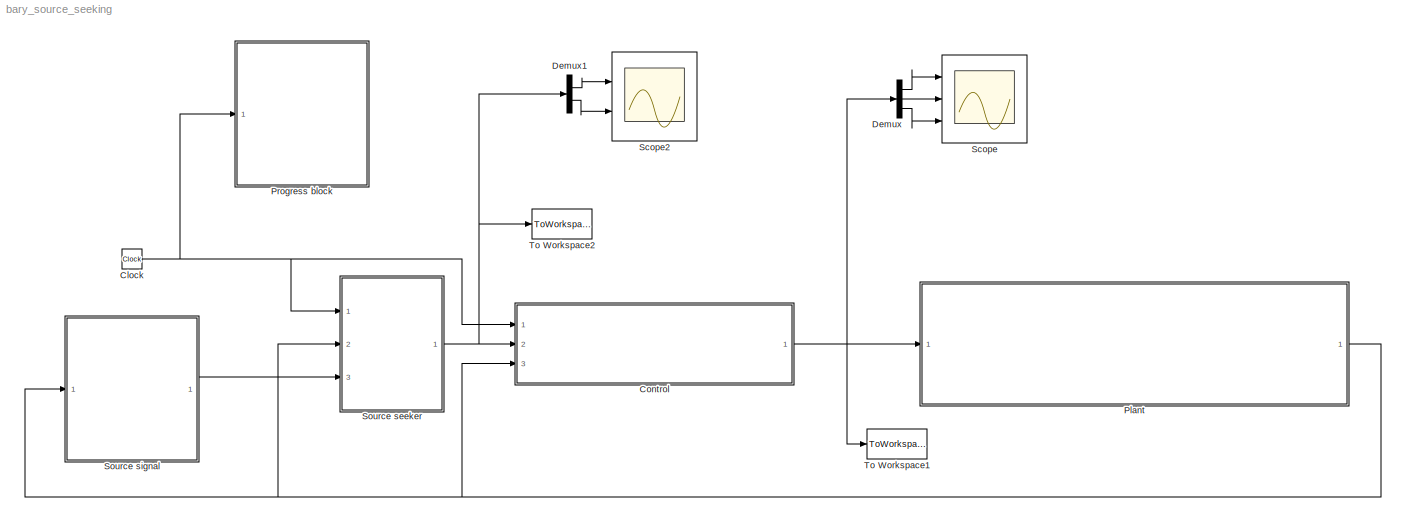
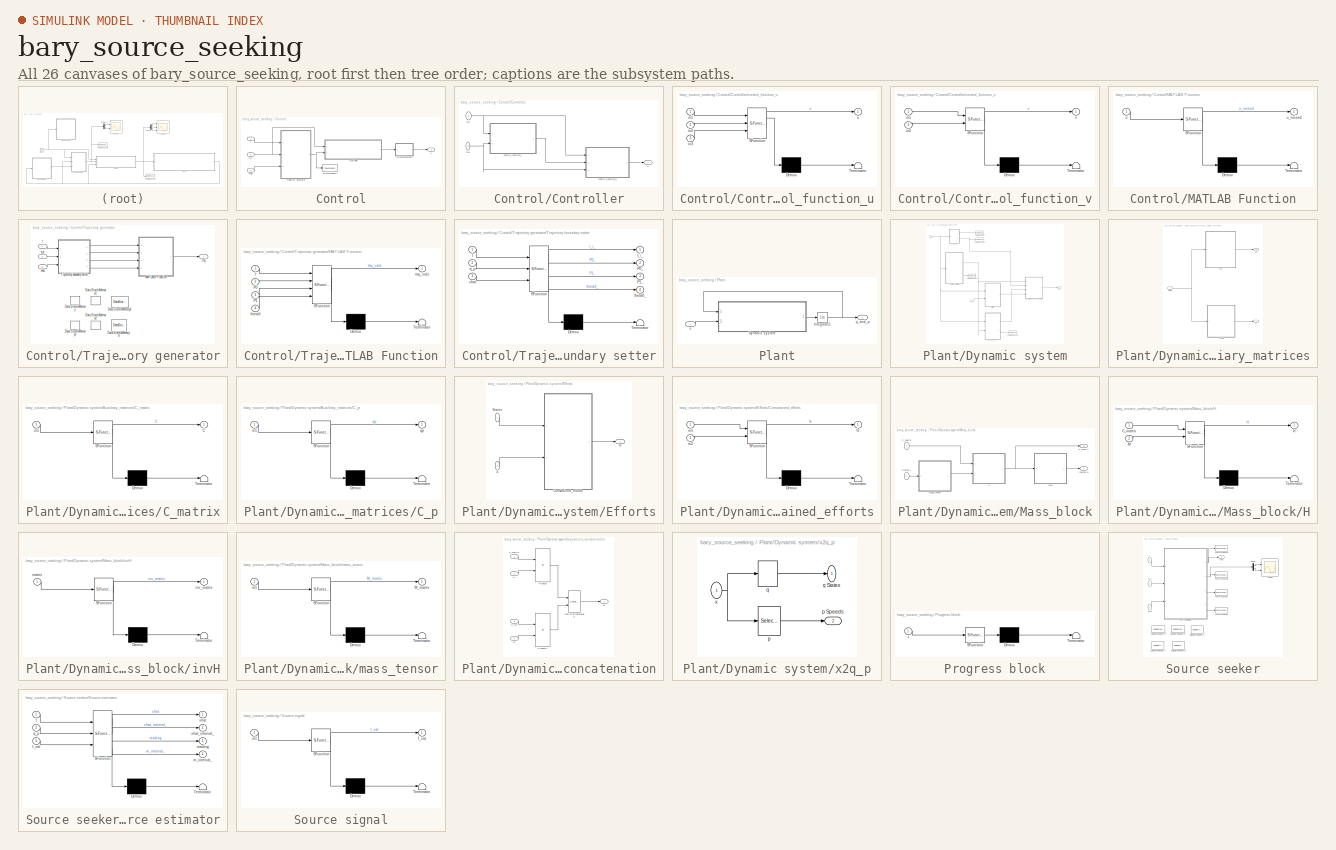
[diagram: thumbnail index - all 26 canvases of the model, root first then tree order]
MODEL bary_source_seeking
KIND model
BLOCK [Clock] Clock
  SID = 6
BLOCK [SubSystem] Control
  Ports = [3, 1]
  RequestExecContextInheritance = off
  SID = 310
  Variant = off
BLOCK [SubSystem] Control/Controller
  Ports = [2, 1]
  RequestExecContextInheritance = off
  SID = 345
  Variant = off
BLOCK [SubSystem] Control/Controller/control_function_u
  ErrorFcn = Stateflow.Translate.translate
  PermitHierarchicalResolution = ExplicitOnly
  Ports = [3, 1]
  RequestExecContextInheritance = off
  SFBlockType = MATLAB Function
  SID = 348
  TreatAsAtomicUnit = on
  Variant = off
BLOCK [Demux] Control/Controller/control_function_u/ Demux 
  Outputs = 1
  Ports = [1, 1]
  SID = 348::109
BLOCK [S-Function] Control/Controller/control_function_u/ SFunction 
  EnableBusSupport = off
  FunctionName = sf_sfun
  PortCounts = [3 2]
  Ports = [3, 2]
  SFcnIsStateOwnerBlock = off
  SFunctionDeploymentMode = off
  SID = 348::108
  Tag = Stateflow S-Function bary_source_seeking 1
BLOCK [Terminator] Control/Controller/control_function_u/ Terminator 
  SID = 348::110
BLOCK [Inport] Control/Controller/control_function_u/in1
  IconDisplay = Port number
  SID = 348::95
BLOCK [Inport] Control/Controller/control_function_u/in2
  IconDisplay = Port number
  Port = 2
  SID = 348::103
BLOCK [Inport] Control/Controller/control_function_u/in3
  IconDisplay = Port number
  Port = 3
  SID = 348::104
BLOCK [Outport] Control/Controller/control_function_u/u
  IconDisplay = Port number
  SID = 348::94
BLOCK [SubSystem] Control/Controller/control_function_v
  ErrorFcn = Stateflow.Translate.translate
  PermitHierarchicalResolution = ExplicitOnly
  Ports = [2, 1]
  RequestExecContextInheritance = off
  SFBlockType = MATLAB Function
  SID = 349
  TreatAsAtomicUnit = on
  Variant = off
BLOCK [Demux] Control/Controller/control_function_v/ Demux 
  Outputs = 1
  Ports = [1, 1]
  SID = 349::108
BLOCK [S-Function] Control/Controller/control_function_v/ SFunction 
  EnableBusSupport = off
  FunctionName = sf_sfun
  PortCounts = [2 2]
  Ports = [2, 2]
  SFcnIsStateOwnerBlock = off
  SFunctionDeploymentMode = off
  SID = 349::107
  Tag = Stateflow S-Function bary_source_seeking 5
BLOCK [Terminator] Control/Controller/control_function_v/ Terminator 
  SID = 349::109
BLOCK [Inport] Control/Controller/control_function_v/in1
  IconDisplay = Port number
  SID = 349::95
BLOCK [Inport] Control/Controller/control_function_v/in2
  IconDisplay = Port number
  Port = 2
  SID = 349::103
BLOCK [Outport] Control/Controller/control_function_v/v
  IconDisplay = Port number
  SID = 349::94
BLOCK [Inport] Control/Controller/q_p
  IconDisplay = Port number
  SID = 346
BLOCK [Inport] Control/Controller/traj
  IconDisplay = Port number
  Port = 2
  SID = 347
BLOCK [Outport] Control/Controller/u
  IconDisplay = Port number
  SID = 350
BLOCK [SubSystem] Control/MATLAB Function
  ErrorFcn = Stateflow.Translate.translate
  PermitHierarchicalResolution = ExplicitOnly
  Ports = [1, 1]
  RequestExecContextInheritance = off
  SFBlockType = MATLAB Function
  SID = 431
  TreatAsAtomicUnit = on
  Variant = off
BLOCK [Demux] Control/MATLAB Function/ Demux 
  Outputs = 1
  Ports = [1, 1]
  SID = 431::27
BLOCK [S-Function] Control/MATLAB Function/ SFunction 
  EnableBusSupport = off
  FunctionName = sf_sfun
  Parameters = control_info
  PortCounts = [1 2]
  Ports = [1, 2]
  SFcnIsStateOwnerBlock = off
  SFunctionDeploymentMode = off
  SID = 431::26
  Tag = Stateflow S-Function bary_source_seeking 6
BLOCK [Terminator] Control/MATLAB Function/ Terminator 
  SID = 431::28
BLOCK [Inport] Control/MATLAB Function/u
  IconDisplay = Port number
  SID = 431::1
BLOCK [Outport] Control/MATLAB Function/u_noised
  IconDisplay = Port number
  SID = 431::5
BLOCK [ToWorkspace] Control/To Workspace1
  FixptAsFi = on
  MaxDataPoints = inf
  Ports = [1]
  SID = 351
  SampleTime = -1
  Save2DSignal = 3-D array (concatenate along third dimension)
  SaveFormat = Structure With Time
  VariableName = trajs
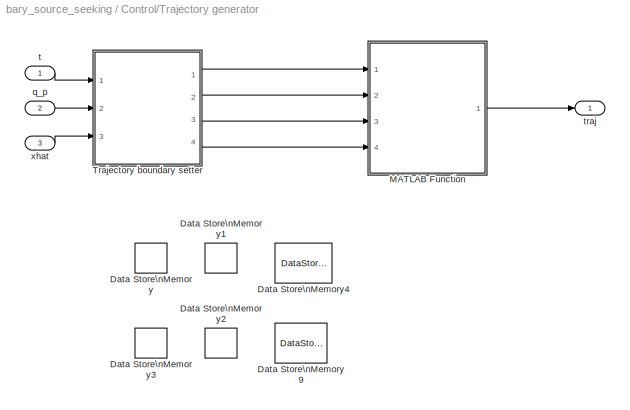
BLOCK [SubSystem] Control/Trajectory generator
  Ports = [3, 1]
  RequestExecContextInheritance = off
  SID = 330
  Variant = off
BLOCK [DataStoreMemory] Control/Trajectory generator/Data Store\nMemory
  DataStoreName = P0
  Dimensions = [2, 1]
  InitialValue = x0(1:2)
  OutDataTypeStr = double
  SID = 335
  ShowAdditionalParam = off
  SignalType = real
  WriteAfterReadMsg = warning
  WriteAfterWriteMsg = warning
BLOCK [DataStoreMemory] Control/Trajectory generator/Data Store\nMemory1
  DataStoreName = P1
  InitialValue = xhat0
  OutDataTypeStr = double
  SID = 336
  ShowAdditionalParam = off
  SignalType = real
BLOCK [DataStoreMemory] Control/Trajectory generator/Data Store\nMemory2
  DataStoreName = theta0
  InitialValue = x0(3)
  OutDataTypeStr = double
  SID = 337
  ShowAdditionalParam = off
  SignalType = real
BLOCK [DataStoreMemory] Control/Trajectory generator/Data Store\nMemory3
  DataStoreName = t_i
  OutDataTypeStr = double
  SID = 338
  ShowAdditionalParam = off
  SignalType = real
BLOCK [DataStoreMemory] Control/Trajectory generator/Data Store\nMemory4
  DataStoreName = traj_params
  OutDataTypeStr = double
  SID = 339
  ShowAdditionalParam = off
  SignalType = real
BLOCK [DataStoreMemory] Control/Trajectory generator/Data Store\nMemory9
  DataStoreName = t_0
  OutDataTypeStr = double
  SID = 340
  ShowAdditionalParam = off
  SignalType = real
BLOCK [SubSystem] Control/Trajectory generator/MATLAB Function
  ErrorFcn = Stateflow.Translate.translate
  PermitHierarchicalResolution = ExplicitOnly
  Ports = [4, 1]
  RequestExecContextInheritance = off
  SFBlockType = MATLAB Function
  SID = 341
  TreatAsAtomicUnit = on
  Variant = off
BLOCK [Demux] Control/Trajectory generator/MATLAB Function/ Demux 
  Outputs = 1
  Ports = [1, 1]
  SID = 341::35
BLOCK [S-Function] Control/Trajectory generator/MATLAB Function/ SFunction 
  EnableBusSupport = off
  FunctionName = sf_sfun
  Parameters = trajectory_info
  PortCounts = [4 2]
  Ports = [4, 2]
  SFcnIsStateOwnerBlock = off
  SFunctionDeploymentMode = off
  SID = 341::34
  Tag = Stateflow S-Function bary_source_seeking 2
BLOCK [Terminator] Control/Trajectory generator/MATLAB Function/ Terminator 
  SID = 341::36
BLOCK [Inport] Control/Trajectory generator/MATLAB Function/P0
  IconDisplay = Port number
  Port = 2
  SID = 341::22
BLOCK [Inport] Control/Trajectory generator/MATLAB Function/P1
  IconDisplay = Port number
  Port = 3
  SID = 341::23
BLOCK [Inport] Control/Trajectory generator/MATLAB Function/t
  IconDisplay = Port number
  SID = 341::1
BLOCK [Inport] Control/Trajectory generator/MATLAB Function/theta0
  IconDisplay = Port number
  Port = 4
  SID = 341::30
BLOCK [Outport] Control/Trajectory generator/MATLAB Function/traj_vals
  IconDisplay = Port number
  SID = 341::5
BLOCK [SubSystem] Control/Trajectory generator/Trajectory boundary setter
  ErrorFcn = Stateflow.Translate.translate
  PermitHierarchicalResolution = ExplicitOnly
  Ports = [3, 4]
  RequestExecContextInheritance = off
  SFBlockType = MATLAB Function
  SID = 342
  TreatAsAtomicUnit = on
  Variant = off
BLOCK [Demux] Control/Trajectory generator/Trajectory boundary setter/ Demux 
  Outputs = 1
  Ports = [1, 1]
  SID = 342::50
BLOCK [S-Function] Control/Trajectory generator/Trajectory boundary setter/ SFunction 
  EnableBusSupport = off
  FunctionName = sf_sfun
  Parameters = source_params
  PortCounts = [3 5]
  Ports = [3, 5]
  SFcnIsStateOwnerBlock = off
  SFunctionDeploymentMode = off
  SID = 342::49
  Tag = Stateflow S-Function bary_source_seeking 4
BLOCK [Terminator] Control/Trajectory generator/Trajectory boundary setter/ Terminator 
  SID = 342::51
BLOCK [Outport] Control/Trajectory generator/Trajectory boundary setter/P0_
  IconDisplay = Port number
  Port = 2
  SID = 342::31
BLOCK [Outport] Control/Trajectory generator/Trajectory boundary setter/P1_
  IconDisplay = Port number
  Port = 3
  SID = 342::32
BLOCK [Inport] Control/Trajectory generator/Trajectory boundary setter/q_p
  IconDisplay = Port number
  Port = 2
  SID = 342::26
BLOCK [Inport] Control/Trajectory generator/Trajectory boundary setter/t
  IconDisplay = Port number
  SID = 342::1
BLOCK [Outport] Control/Trajectory generator/Trajectory boundary setter/t_i_
  IconDisplay = Port number
  SID = 342::5
BLOCK [Outport] Control/Trajectory generator/Trajectory boundary setter/theta0_
  IconDisplay = Port number
  Port = 4
  SID = 342::33
BLOCK [Inport] Control/Trajectory generator/Trajectory boundary setter/xhat
  IconDisplay = Port number
  Port = 3
  SID = 342::22
BLOCK [Inport] Control/Trajectory generator/q_p
  IconDisplay = Port number
  Port = 2
  SID = 332
BLOCK [Inport] Control/Trajectory generator/t
  IconDisplay = Port number
  SID = 331
BLOCK [Outport] Control/Trajectory generator/traj
  IconDisplay = Port number
  SID = 343
BLOCK [Inport] Control/Trajectory generator/xhat
  IconDisplay = Port number
  Port = 3
  SID = 334
BLOCK [Inport] Control/q_p
  IconDisplay = Port number
  Port = 3
  SID = 314
BLOCK [Inport] Control/t
  IconDisplay = Port number
  SID = 311
BLOCK [Outport] Control/u
  IconDisplay = Port number
  SID = 329
BLOCK [Inport] Control/xhat
  IconDisplay = Port number
  Port = 2
  SID = 313
BLOCK [Demux] Demux
  DisplayOption = bar
  Outputs = 3
  Ports = [1, 3]
  SID = 409
BLOCK [Demux] Demux1
  DisplayOption = bar
  Outputs = 2
  Ports = [1, 2]
  SID = 414
BLOCK [SubSystem] Plant
  Ports = [1, 1]
  RequestExecContextInheritance = off
  SID = 82
  Variant = off
BLOCK [SubSystem] Plant/Dynamic system
  Ports = [2, 1]
  RequestExecContextInheritance = off
  SID = 266
  Variant = off
BLOCK [SubSystem] Plant/Dynamic system/Auxiliary_matrices
  Ports = [1, 2]
  RequestExecContextInheritance = off
  SID = 269
  Variant = off
BLOCK [Outport] Plant/Dynamic system/Auxiliary_matrices/C
  IconDisplay = Port number
  SID = 273
BLOCK [SubSystem] Plant/Dynamic system/Auxiliary_matrices/C_matrix
  ErrorFcn = Stateflow.Translate.translate
  PermitHierarchicalResolution = ExplicitOnly
  Ports = [1, 1]
  RequestExecContextInheritance = off
  SFBlockType = MATLAB Function
  SID = 271
  TreatAsAtomicUnit = on
  Variant = off
BLOCK [Demux] Plant/Dynamic system/Auxiliary_matrices/C_matrix/ Demux 
  Outputs = 1
  Ports = [1, 1]
  SID = 271::71
BLOCK [S-Function] Plant/Dynamic system/Auxiliary_matrices/C_matrix/ SFunction 
  EnableBusSupport = off
  FunctionName = sf_sfun
  PortCounts = [1 2]
  Ports = [1, 2]
  SFcnIsStateOwnerBlock = off
  SFunctionDeploymentMode = off
  SID = 271::70
  Tag = Stateflow S-Function bary_source_seeking 8
BLOCK [Terminator] Plant/Dynamic system/Auxiliary_matrices/C_matrix/ Terminator 
  SID = 271::72
BLOCK [Outport] Plant/Dynamic system/Auxiliary_matrices/C_matrix/C
  IconDisplay = Port number
  SID = 271::5
BLOCK [Inport] Plant/Dynamic system/Auxiliary_matrices/C_matrix/in1
  IconDisplay = Port number
  SID = 271::1
BLOCK [SubSystem] Plant/Dynamic system/Auxiliary_matrices/C_p
  ErrorFcn = Stateflow.Translate.translate
  PermitHierarchicalResolution = ExplicitOnly
  Ports = [1, 1]
  RequestExecContextInheritance = off
  SFBlockType = MATLAB Function
  SID = 272
  TreatAsAtomicUnit = on
  Variant = off
BLOCK [Demux] Plant/Dynamic system/Auxiliary_matrices/C_p/ Demux 
  Outputs = 1
  Ports = [1, 1]
  SID = 272::106
BLOCK [S-Function] Plant/Dynamic system/Auxiliary_matrices/C_p/ SFunction 
  EnableBusSupport = off
  FunctionName = sf_sfun
  PortCounts = [1 2]
  Ports = [1, 2]
  SFcnIsStateOwnerBlock = off
  SFunctionDeploymentMode = off
  SID = 272::105
  Tag = Stateflow S-Function bary_source_seeking 16
BLOCK [Terminator] Plant/Dynamic system/Auxiliary_matrices/C_p/ Terminator 
  SID = 272::107
BLOCK [Inport] Plant/Dynamic system/Auxiliary_matrices/C_p/in1
  IconDisplay = Port number
  SID = 272::95
BLOCK [Outport] Plant/Dynamic system/Auxiliary_matrices/C_p/qp
  IconDisplay = Port number
  SID = 272::94
BLOCK [Inport] Plant/Dynamic system/Auxiliary_matrices/States
  IconDisplay = Port number
  SID = 270
BLOCK [Outport] Plant/Dynamic system/Auxiliary_matrices/qp
  IconDisplay = Port number
  Port = 2
  SID = 274
BLOCK [SubSystem] Plant/Dynamic system/Efforts
  Ports = [2, 1]
  RequestExecContextInheritance = off
  SID = 275
  Variant = off
BLOCK [SubSystem] Plant/Dynamic system/Efforts/Constrained_efforts
  ErrorFcn = Stateflow.Translate.translate
  PermitHierarchicalResolution = ExplicitOnly
  Ports = [2, 1]
  RequestExecContextInheritance = off
  SFBlockType = MATLAB Function
  SID = 278
  TreatAsAtomicUnit = on
  Variant = off
BLOCK [Demux] Plant/Dynamic system/Efforts/Constrained_efforts/ Demux 
  Outputs = 1
  Ports = [1, 1]
  SID = 278::143
BLOCK [S-Function] Plant/Dynamic system/Efforts/Constrained_efforts/ SFunction 
  EnableBusSupport = off
  FunctionName = sf_sfun
  PortCounts = [2 2]
  Ports = [2, 2]
  SFcnIsStateOwnerBlock = off
  SFunctionDeploymentMode = off
  SID = 278::142
  Tag = Stateflow S-Function bary_source_seeking 9
BLOCK [Terminator] Plant/Dynamic system/Efforts/Constrained_efforts/ Terminator 
  SID = 278::144
BLOCK [Outport] Plant/Dynamic system/Efforts/Constrained_efforts/fs
  IconDisplay = Port number
  SID = 278::94
BLOCK [Inport] Plant/Dynamic system/Efforts/Constrained_efforts/in1
  IconDisplay = Port number
  SID = 278::95
BLOCK [Inport] Plant/Dynamic system/Efforts/Constrained_efforts/in2
  IconDisplay = Port number
  Port = 2
  SID = 278::138
BLOCK [Inport] Plant/Dynamic system/Efforts/States
  IconDisplay = Port number
  SID = 276
BLOCK [Outport] Plant/Dynamic system/Efforts/fs
  IconDisplay = Port number
  SID = 279
BLOCK [Inport] Plant/Dynamic system/Efforts/u
  IconDisplay = Port number
  Port = 2
  SID = 277
BLOCK [SubSystem] Plant/Dynamic system/Mass_block
  Ports = [2, 2]
  RequestExecContextInheritance = off
  SID = 280
  Variant = off
BLOCK [Inport] Plant/Dynamic system/Mass_block/C_1delta  
  IconDisplay = Port number
  Port = 2
  SID = 282
BLOCK [SubSystem] Plant/Dynamic system/Mass_block/H
  ErrorFcn = Stateflow.Translate.translate
  PermitHierarchicalResolution = ExplicitOnly
  Ports = [2, 1]
  RequestExecContextInheritance = off
  SFBlockType = MATLAB Function
  SID = 283
  TreatAsAtomicUnit = on
  Variant = off
BLOCK [Demux] Plant/Dynamic system/Mass_block/H/ Demux 
  Outputs = 1
  Ports = [1, 1]
  SID = 283::66
BLOCK [S-Function] Plant/Dynamic system/Mass_block/H/ SFunction 
  EnableBusSupport = off
  FunctionName = sf_sfun
  PortCounts = [2 2]
  Ports = [2, 2]
  SFcnIsStateOwnerBlock = off
  SFunctionDeploymentMode = off
  SID = 283::65
  Tag = Stateflow S-Function bary_source_seeking 10
BLOCK [Terminator] Plant/Dynamic system/Mass_block/H/ Terminator 
  SID = 283::67
BLOCK [Inport] Plant/Dynamic system/Mass_block/H/C_matrix
  IconDisplay = Port number
  SID = 283::1
BLOCK [Outport] Plant/Dynamic system/Mass_block/H/H
  IconDisplay = Port number
  SID = 283::5
BLOCK [Inport] Plant/Dynamic system/Mass_block/H/M
  IconDisplay = Port number
  Port = 2
  SID = 283::61
BLOCK [Outport] Plant/Dynamic system/Mass_block/H_matrix
  IconDisplay = Port number
  Port = 2
  SID = 287
BLOCK [Inport] Plant/Dynamic system/Mass_block/States x
  IconDisplay = Port number
  SID = 281
BLOCK [SubSystem] Plant/Dynamic system/Mass_block/invH
  ErrorFcn = Stateflow.Translate.translate
  PermitHierarchicalResolution = ExplicitOnly
  Ports = [1, 1]
  RequestExecContextInheritance = off
  SFBlockType = MATLAB Function
  SID = 284
  TreatAsAtomicUnit = on
  Variant = off
BLOCK [Demux] Plant/Dynamic system/Mass_block/invH/ Demux 
  Outputs = 1
  Ports = [1, 1]
  SID = 284::65
BLOCK [S-Function] Plant/Dynamic system/Mass_block/invH/ SFunction 
  EnableBusSupport = off
  FunctionName = sf_sfun
  PortCounts = [1 2]
  Ports = [1, 2]
  SFcnIsStateOwnerBlock = off
  SFunctionDeploymentMode = off
  SID = 284::64
  Tag = Stateflow S-Function bary_source_seeking 12
BLOCK [Terminator] Plant/Dynamic system/Mass_block/invH/ Terminator 
  SID = 284::66
BLOCK [Outport] Plant/Dynamic system/Mass_block/invH/inv_matrix
  IconDisplay = Port number
  SID = 284::5
BLOCK [Inport] Plant/Dynamic system/Mass_block/invH/matrix
  IconDisplay = Port number
  SID = 284::1
BLOCK [Outport] Plant/Dynamic system/Mass_block/inverse H
  IconDisplay = Port number
  SID = 286
BLOCK [SubSystem] Plant/Dynamic system/Mass_block/mass_tensor
  ErrorFcn = Stateflow.Translate.translate
  PermitHierarchicalResolution = ExplicitOnly
  Ports = [1, 1]
  RequestExecContextInheritance = off
  SFBlockType = MATLAB Function
  SID = 285
  TreatAsAtomicUnit = on
  Variant = off
BLOCK [Demux] Plant/Dynamic system/Mass_block/mass_tensor/ Demux 
  Outputs = 1
  Ports = [1, 1]
  SID = 285::65
BLOCK [S-Function] Plant/Dynamic system/Mass_block/mass_tensor/ SFunction 
  EnableBusSupport = off
  FunctionName = sf_sfun
  PortCounts = [1 2]
  Ports = [1, 2]
  SFcnIsStateOwnerBlock = off
  SFunctionDeploymentMode = off
  SID = 285::64
  Tag = Stateflow S-Function bary_source_seeking 11
BLOCK [Terminator] Plant/Dynamic system/Mass_block/mass_tensor/ Terminator 
  SID = 285::66
BLOCK [Outport] Plant/Dynamic system/Mass_block/mass_tensor/M_matrix
  IconDisplay = Port number
  SID = 285::5
BLOCK [Inport] Plant/Dynamic system/Mass_block/mass_tensor/in1
  IconDisplay = Port number
  SID = 285::1
BLOCK [ToWorkspace] Plant/Dynamic system/To Workspace
  FixptAsFi = on
  MaxDataPoints = inf
  Ports = [1]
  SID = 288
  SampleTime = -1
  Save2DSignal = 3-D array (concatenate along third dimension)
  SaveFormat = Structure With Time
  VariableName = coordinates
BLOCK [ToWorkspace] Plant/Dynamic system/To Workspace1
  FixptAsFi = on
  MaxDataPoints = inf
  Ports = [1]
  SID = 289
  SampleTime = -1
  Save2DSignal = 3-D array (concatenate along third dimension)
  SaveFormat = Structure With Time
  VariableName = p_speeds
BLOCK [ToWorkspace] Plant/Dynamic system/To Workspace2
  FixptAsFi = on
  MaxDataPoints = inf
  Ports = [1]
  SID = 290
  SampleTime = -1
  Save2DSignal = 3-D array (concatenate along third dimension)
  SaveFormat = Structure With Time
  VariableName = H
BLOCK [ToWorkspace] Plant/Dynamic system/To Workspace3
  FixptAsFi = on
  MaxDataPoints = inf
  Ports = [1]
  SID = 291
  SampleTime = -1
  Save2DSignal = 3-D array (concatenate along third dimension)
  SaveFormat = Structure With Time
  VariableName = q_speeds
BLOCK [Outport] Plant/Dynamic system/dx
  IconDisplay = Port number
  SID = 307
BLOCK [SubSystem] Plant/Dynamic system/equations_concatenation
  Ports = [4, 1]
  RequestExecContextInheritance = off
  SID = 292
  Variant = off
BLOCK [Inport] Plant/Dynamic system/equations_concatenation/C_matrix
  IconDisplay = Port number
  SID = 293
BLOCK [Inport] Plant/Dynamic system/equations_concatenation/H_inv
  IconDisplay = Port number
  Port = 3
  SID = 295
BLOCK [Concatenate] Plant/Dynamic system/equations_concatenation/Matrix\nConcatenate
  ConcatenateDimension = 2
  Ports = [2, 1]
  SID = 297
BLOCK [Product] Plant/Dynamic system/equations_concatenation/Product
  InputSameDT = off
  Multiplication = Matrix(*)
  OutDataTypeStr = Inherit: Inherit via internal rule
  Ports = [2, 1]
  RndMeth = Floor
  SID = 298
  SaturateOnIntegerOverflow = off
BLOCK [Product] Plant/Dynamic system/equations_concatenation/Product1
  InputSameDT = off
  Multiplication = Matrix(*)
  OutDataTypeStr = Inherit: Inherit via internal rule
  Ports = [2, 1]
  RndMeth = Floor
  SID = 299
  SaturateOnIntegerOverflow = off
BLOCK [Outport] Plant/Dynamic system/equations_concatenation/dx
  IconDisplay = Port number
  SID = 300
BLOCK [Inport] Plant/Dynamic system/equations_concatenation/fs
  IconDisplay = Port number
  Port = 4
  SID = 296
BLOCK [Inport] Plant/Dynamic system/equations_concatenation/p
  IconDisplay = Port number
  Port = 2
  SID = 294
BLOCK [Inport] Plant/Dynamic system/u
  IconDisplay = Port number
  Port = 2
  SID = 268
BLOCK [Inport] Plant/Dynamic system/x
  IconDisplay = Port number
  SID = 267
BLOCK [SubSystem] Plant/Dynamic system/x2q_p
  Ports = [1, 2]
  RequestExecContextInheritance = off
  SID = 301
  Variant = off
BLOCK [Selector] Plant/Dynamic system/x2q_p/p
  IndexOptions = Index vector (dialog)
  Indices = (length(sys.kin.q))+1:(length(sys.kin.q) + length(sys.kin.p{end}))
  InputPortWidth = length(sys.kin.q) + length(sys.kin.p{end})
  OutputSizes = 1
  Ports = [1, 1]
  SID = 303
BLOCK [Outport] Plant/Dynamic system/x2q_p/p Speeds
  IconDisplay = Port number
  Port = 2
  SID = 306
BLOCK [Selector] Plant/Dynamic system/x2q_p/q
  IndexOptions = Index vector (dialog)
  Indices = 1:length(sys.kin.q)
  InputPortWidth = length(sys.kin.q) + length(sys.kin.p{end})
  OutputSizes = 1
  Ports = [1, 1]
  SID = 304
BLOCK [Outport] Plant/Dynamic system/x2q_p/q States
  IconDisplay = Port number
  SID = 305
BLOCK [Inport] Plant/Dynamic system/x2q_p/x
  IconDisplay = Port number
  SID = 302
BLOCK [Integrator] Plant/Integrator1
  InitialCondition = x0
  Ports = [1, 1]
  SID = 308
BLOCK [Outport] Plant/q_and_p
  IconDisplay = Port number
  SID = 87
BLOCK [Inport] Plant/u
  IconDisplay = Port number
  SID = 84
BLOCK [SubSystem] Progress block
  ErrorFcn = Stateflow.Translate.translate
  PermitHierarchicalResolution = ExplicitOnly
  Ports = [1]
  RequestExecContextInheritance = off
  SFBlockType = MATLAB Function
  SID = 432
  TreatAsAtomicUnit = on
  Variant = off
BLOCK [Demux] Progress block/ Demux 
  Outputs = 1
  Ports = [1, 1]
  SID = 432::100
BLOCK [S-Function] Progress block/ SFunction 
  EnableBusSupport = off
  FunctionName = sf_sfun
  Parameters = tf
  PortCounts = [1 1]
  Ports = [1, 1]
  SFcnIsStateOwnerBlock = off
  SFunctionDeploymentMode = off
  SID = 432::99
  Tag = Stateflow S-Function bary_source_seeking 13
BLOCK [Terminator] Progress block/ Terminator 
  SID = 432::101
BLOCK [Inport] Progress block/t
  IconDisplay = Port number
  SID = 432::1
BLOCK [Scope] Scope
  NumInputPorts = 3
  Ports = [3]
  SID = 410
  ScopeSpecificationString = C++SS(StrPVP('Open','off'),StrPVP('TimeRange','auto'),StrPVP('TickLabels','OneTimeTick'),StrPVP('ShowLegends','off'),StrPVP('LimitDataPoints','off'),StrPVP('MaxDataPoints','5000'),StrPVP('SaveToWorkspace','off'),StrPVP('SaveName','ScopeData'),StrPVP('YMin','-47524560.40631~-46678886.57029~-48367126.84645'),StrPVP('YMax','46881254.05789~47676317.99064~47190471.25183'),StrPVP('BlockParamSampleInput'...<+714ch>
BLOCK [Scope] Scope2
  NumInputPorts = 2
  Ports = [2]
  SID = 415
  ScopeSpecificationString = C++SS(StrPVP('Open','off'),StrPVP('TimeRange','auto'),StrPVP('TickLabels','OneTimeTick'),StrPVP('ShowLegends','off'),StrPVP('LimitDataPoints','off'),StrPVP('MaxDataPoints','5000'),StrPVP('SaveToWorkspace','off'),StrPVP('SaveName','ScopeData3'),StrPVP('YMin','1.14515~0.331'),StrPVP('YMax','3.56249~2.90479'),StrPVP('BlockParamSampleInput','off'),StrPVP('BlockParamSampleTime','-1'),StrPVP('ZoomMode',...<+623ch>
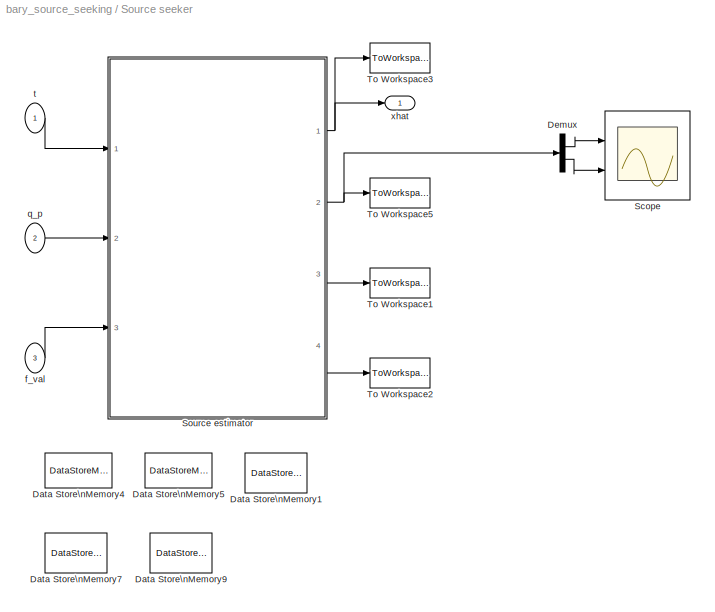
BLOCK [SubSystem] Source seeker
  Ports = [3, 1]
  RequestExecContextInheritance = off
  SID = 387
  Variant = off
BLOCK [DataStoreMemory] Source seeker/Data Store\nMemory1
  DataStoreName = t_0c
  OutDataTypeStr = double
  SID = 408
  ShowAdditionalParam = off
  SignalType = real
BLOCK [DataStoreMemory] Source seeker/Data Store\nMemory4
  DataStoreName = xhat_interval
  Dimensions = [2, 1]
  InitialValue = xhat0
  OutDataTypeStr = double
  SID = 391
  ShowAdditionalParam = off
  SignalType = real
BLOCK [DataStoreMemory] Source seeker/Data Store\nMemory5
  DataStoreName = m_interval
  OutDataTypeStr = double
  SID = 392
  ShowAdditionalParam = off
  SignalType = real
BLOCK [DataStoreMemory] Source seeker/Data Store\nMemory7
  DataStoreName = xhat_prev
  InitialValue = xhat0 + gaussianrnd([0; 0], source_params.devval)
  OutDataTypeStr = double
  SID = 393
  ShowAdditionalParam = off
  SignalType = real
BLOCK [DataStoreMemory] Source seeker/Data Store\nMemory9
  DataStoreName = t_0s
  OutDataTypeStr = double
  SID = 394
  ShowAdditionalParam = off
  SignalType = real
BLOCK [Demux] Source seeker/Demux
  DisplayOption = bar
  Outputs = 2
  Ports = [1, 2]
  SID = 412
BLOCK [Scope] Source seeker/Scope
  NumInputPorts = 2
  Ports = [2]
  SID = 413
  ScopeSpecificationString = C++SS(StrPVP('Open','off'),StrPVP('TimeRange','auto'),StrPVP('TickLabels','OneTimeTick'),StrPVP('ShowLegends','off'),StrPVP('LimitDataPoints','off'),StrPVP('MaxDataPoints','5000'),StrPVP('SaveToWorkspace','off'),StrPVP('SaveName','ScopeData2'),StrPVP('YMin','1.97073~0.9529'),StrPVP('YMax','2.30429~2.15131'),StrPVP('BlockParamSampleInput','off'),StrPVP('BlockParamSampleTime','-1'),StrPVP('ZoomMode'...<+625ch>
BLOCK [SubSystem] Source seeker/Source estimator
  ErrorFcn = Stateflow.Translate.translate
  PermitHierarchicalResolution = ExplicitOnly
  Ports = [3, 4]
  RequestExecContextInheritance = off
  SFBlockType = MATLAB Function
  SID = 395
  TreatAsAtomicUnit = on
  Variant = off
BLOCK [Demux] Source seeker/Source estimator/ Demux 
  Outputs = 1
  Ports = [1, 1]
  SID = 395::122
BLOCK [S-Function] Source seeker/Source estimator/ SFunction 
  EnableBusSupport = off
  FunctionName = sf_sfun
  Parameters = source_params
  PortCounts = [3 5]
  Ports = [3, 5]
  SFcnIsStateOwnerBlock = off
  SFunctionDeploymentMode = off
  SID = 395::121
  Tag = Stateflow S-Function bary_source_seeking 3
BLOCK [Terminator] Source seeker/Source estimator/ Terminator 
  SID = 395::123
BLOCK [Inport] Source seeker/Source estimator/f_val
  IconDisplay = Port number
  Port = 3
  SID = 395::107
BLOCK [Outport] Source seeker/Source estimator/m_interval_
  IconDisplay = Port number
  Port = 4
  SID = 395::115
BLOCK [Inport] Source seeker/Source estimator/q_p
  IconDisplay = Port number
  Port = 2
  SID = 395::22
BLOCK [Outport] Source seeker/Source estimator/reading
  IconDisplay = Port number
  Port = 3
  SID = 395::114
BLOCK [Inport] Source seeker/Source estimator/t
  IconDisplay = Port number
  SID = 395::1
BLOCK [Outport] Source seeker/Source estimator/xhat
  IconDisplay = Port number
  SID = 395::110
BLOCK [Outport] Source seeker/Source estimator/xhat_interval_
  IconDisplay = Port number
  Port = 2
  SID = 395::111
BLOCK [ToWorkspace] Source seeker/To Workspace1
  FixptAsFi = on
  MaxDataPoints = inf
  Ports = [1]
  SID = 396
  SampleTime = -1
  Save2DSignal = 3-D array (concatenate along third dimension)
  SaveFormat = Structure With Time
  VariableName = readings
BLOCK [ToWorkspace] Source seeker/To Workspace2
  FixptAsFi = on
  MaxDataPoints = inf
  Ports = [1]
  SID = 407
  SampleTime = -1
  Save2DSignal = 3-D array (concatenate along third dimension)
  SaveFormat = Structure With Time
  VariableName = m_interval
BLOCK [ToWorkspace] Source seeker/To Workspace3
  FixptAsFi = on
  MaxDataPoints = inf
  Ports = [1]
  SID = 397
  SampleTime = -1
  Save2DSignal = 3-D array (concatenate along third dimension)
  SaveFormat = Structure With Time
  VariableName = xhat
BLOCK [ToWorkspace] Source seeker/To Workspace5
  FixptAsFi = on
  MaxDataPoints = inf
  Ports = [1]
  SID = 398
  SampleTime = -1
  Save2DSignal = 3-D array (concatenate along third dimension)
  SaveFormat = Structure With Time
  VariableName = xhat_interval
BLOCK [Inport] Source seeker/f_val
  IconDisplay = Port number
  Port = 3
  SID = 390
BLOCK [Inport] Source seeker/q_p
  IconDisplay = Port number
  Port = 2
  SID = 389
BLOCK [Inport] Source seeker/t
  IconDisplay = Port number
  SID = 388
BLOCK [Outport] Source seeker/xhat
  IconDisplay = Port number
  SID = 400
BLOCK [SubSystem] Source signal
  ErrorFcn = Stateflow.Translate.translate
  PermitHierarchicalResolution = ExplicitOnly
  Ports = [1, 1]
  RequestExecContextInheritance = off
  SFBlockType = MATLAB Function
  SID = 401
  TreatAsAtomicUnit = on
  Variant = off
BLOCK [Demux] Source signal/ Demux 
  Outputs = 1
  Ports = [1, 1]
  SID = 401::98
BLOCK [S-Function] Source signal/ SFunction 
  EnableBusSupport = off
  FunctionName = sf_sfun
  PortCounts = [1 2]
  Ports = [1, 2]
  SFcnIsStateOwnerBlock = off
  SFunctionDeploymentMode = off
  SID = 401::97
  Tag = Stateflow S-Function bary_source_seeking 7
BLOCK [Terminator] Source signal/ Terminator 
  SID = 401::99
BLOCK [Outport] Source signal/f_val
  IconDisplay = Port number
  SID = 401::93
BLOCK [Inport] Source signal/in1
  IconDisplay = Port number
  SID = 401::1
BLOCK [ToWorkspace] To Workspace1
  FixptAsFi = on
  MaxDataPoints = inf
  Ports = [1]
  SID = 420
  SampleTime = -1
  Save2DSignal = 3-D array (concatenate along third dimension)
  SaveFormat = Structure With Time
  VariableName = u
BLOCK [ToWorkspace] To Workspace2
  FixptAsFi = on
  MaxDataPoints = inf
  Ports = [1]
  SID = 403
  SampleTime = -1
  Save2DSignal = 3-D array (concatenate along third dimension)
  SaveFormat = Structure With Time
  VariableName = estimations
NET Clock:1 -> Control:1, Progress block:1, Source seeker:1
LINE Control/Controller/control_function_u/ Demux :1 -> Control/Controller/control_function_u/ Terminator :1
LINE Control/Controller/control_function_u/ SFunction :1 -> Control/Controller/control_function_u/ Demux :1
LINE Control/Controller/control_function_u/ SFunction :2 -> Control/Controller/control_function_u/u:1
LINE Control/Controller/control_function_u/in1:1 -> Control/Controller/control_function_u/ SFunction :1
LINE Control/Controller/control_function_u/in2:1 -> Control/Controller/control_function_u/ SFunction :2
LINE Control/Controller/control_function_u/in3:1 -> Control/Controller/control_function_u/ SFunction :3
LINE Control/Controller/control_function_u:1 -> Control/Controller/u:1
LINE Control/Controller/control_function_v/ Demux :1 -> Control/Controller/control_function_v/ Terminator :1
LINE Control/Controller/control_function_v/ SFunction :1 -> Control/Controller/control_function_v/ Demux :1
LINE Control/Controller/control_function_v/ SFunction :2 -> Control/Controller/control_function_v/v:1
LINE Control/Controller/control_function_v/in1:1 -> Control/Controller/control_function_v/ SFunction :1
LINE Control/Controller/control_function_v/in2:1 -> Control/Controller/control_function_v/ SFunction :2
LINE Control/Controller/control_function_v:1 -> Control/Controller/control_function_u:2
NET Control/Controller/q_p:1 -> Control/Controller/control_function_u:1, Control/Controller/control_function_v:1
NET Control/Controller/traj:1 -> Control/Controller/control_function_u:3, Control/Controller/control_function_v:2
LINE Control/Controller:1 -> Control/MATLAB Function:1
LINE Control/MATLAB Function/ Demux :1 -> Control/MATLAB Function/ Terminator :1
LINE Control/MATLAB Function/ SFunction :1 -> Control/MATLAB Function/ Demux :1
LINE Control/MATLAB Function/ SFunction :2 -> Control/MATLAB Function/u_noised:1
LINE Control/MATLAB Function/u:1 -> Control/MATLAB Function/ SFunction :1
LINE Control/MATLAB Function:1 -> Control/u:1
LINE Control/Trajectory generator/MATLAB Function/ Demux :1 -> Control/Trajectory generator/MATLAB Function/ Terminator :1
LINE Control/Trajectory generator/MATLAB Function/ SFunction :1 -> Control/Trajectory generator/MATLAB Function/ Demux :1
LINE Control/Trajectory generator/MATLAB Function/ SFunction :2 -> Control/Trajectory generator/MATLAB Function/traj_vals:1
LINE Control/Trajectory generator/MATLAB Function/P0:1 -> Control/Trajectory generator/MATLAB Function/ SFunction :2
LINE Control/Trajectory generator/MATLAB Function/P1:1 -> Control/Trajectory generator/MATLAB Function/ SFunction :3
LINE Control/Trajectory generator/MATLAB Function/t:1 -> Control/Trajectory generator/MATLAB Function/ SFunction :1
LINE Control/Trajectory generator/MATLAB Function/theta0:1 -> Control/Trajectory generator/MATLAB Function/ SFunction :4
LINE Control/Trajectory generator/MATLAB Function:1 -> Control/Trajectory generator/traj:1
LINE Control/Trajectory generator/Trajectory boundary setter/ Demux :1 -> Control/Trajectory generator/Trajectory boundary setter/ Terminator :1
LINE Control/Trajectory generator/Trajectory boundary setter/ SFunction :1 -> Control/Trajectory generator/Trajectory boundary setter/ Demux :1
LINE Control/Trajectory generator/Trajectory boundary setter/ SFunction :2 -> Control/Trajectory generator/Trajectory boundary setter/t_i_:1
LINE Control/Trajectory generator/Trajectory boundary setter/ SFunction :3 -> Control/Trajectory generator/Trajectory boundary setter/P0_:1
LINE Control/Trajectory generator/Trajectory boundary setter/ SFunction :4 -> Control/Trajectory generator/Trajectory boundary setter/P1_:1
LINE Control/Trajectory generator/Trajectory boundary setter/ SFunction :5 -> Control/Trajectory generator/Trajectory boundary setter/theta0_:1
LINE Control/Trajectory generator/Trajectory boundary setter/q_p:1 -> Control/Trajectory generator/Trajectory boundary setter/ SFunction :2
LINE Control/Trajectory generator/Trajectory boundary setter/t:1 -> Control/Trajectory generator/Trajectory boundary setter/ SFunction :1
LINE Control/Trajectory generator/Trajectory boundary setter/xhat:1 -> Control/Trajectory generator/Trajectory boundary setter/ SFunction :3
LINE Control/Trajectory generator/Trajectory boundary setter:1 -> Control/Trajectory generator/MATLAB Function:1
LINE Control/Trajectory generator/Trajectory boundary setter:2 -> Control/Trajectory generator/MATLAB Function:2
LINE Control/Trajectory generator/Trajectory boundary setter:3 -> Control/Trajectory generator/MATLAB Function:3
LINE Control/Trajectory generator/Trajectory boundary setter:4 -> Control/Trajectory generator/MATLAB Function:4
LINE Control/Trajectory generator/q_p:1 -> Control/Trajectory generator/Trajectory boundary setter:2
LINE Control/Trajectory generator/t:1 -> Control/Trajectory generator/Trajectory boundary setter:1
LINE Control/Trajectory generator/xhat:1 -> Control/Trajectory generator/Trajectory boundary setter:3
NET Control/Trajectory generator:1 -> Control/Controller:2, Control/To Workspace1:1
NET Control/q_p:1 -> Control/Controller:1, Control/Trajectory generator:2
LINE Control/t:1 -> Control/Trajectory generator:1
LINE Control/xhat:1 -> Control/Trajectory generator:3
NET Control:1 -> Demux:1, Plant:1, To Workspace1:1
LINE Demux1:1 -> Scope2:1
LINE Demux1:2 -> Scope2:2
LINE Demux:1 -> Scope:1
LINE Demux:2 -> Scope:2
LINE Demux:3 -> Scope:3
LINE Plant/Dynamic system/Auxiliary_matrices/C_matrix/ Demux :1 -> Plant/Dynamic system/Auxiliary_matrices/C_matrix/ Terminator :1
LINE Plant/Dynamic system/Auxiliary_matrices/C_matrix/ SFunction :1 -> Plant/Dynamic system/Auxiliary_matrices/C_matrix/ Demux :1
LINE Plant/Dynamic system/Auxiliary_matrices/C_matrix/ SFunction :2 -> Plant/Dynamic system/Auxiliary_matrices/C_matrix/C:1
LINE Plant/Dynamic system/Auxiliary_matrices/C_matrix/in1:1 -> Plant/Dynamic system/Auxiliary_matrices/C_matrix/ SFunction :1
LINE Plant/Dynamic system/Auxiliary_matrices/C_matrix:1 -> Plant/Dynamic system/Auxiliary_matrices/C:1
LINE Plant/Dynamic system/Auxiliary_matrices/C_p/ Demux :1 -> Plant/Dynamic system/Auxiliary_matrices/C_p/ Terminator :1
LINE Plant/Dynamic system/Auxiliary_matrices/C_p/ SFunction :1 -> Plant/Dynamic system/Auxiliary_matrices/C_p/ Demux :1
LINE Plant/Dynamic system/Auxiliary_matrices/C_p/ SFunction :2 -> Plant/Dynamic system/Auxiliary_matrices/C_p/qp:1
LINE Plant/Dynamic system/Auxiliary_matrices/C_p/in1:1 -> Plant/Dynamic system/Auxiliary_matrices/C_p/ SFunction :1
LINE Plant/Dynamic system/Auxiliary_matrices/C_p:1 -> Plant/Dynamic system/Auxiliary_matrices/qp:1
NET Plant/Dynamic system/Auxiliary_matrices/States:1 -> Plant/Dynamic system/Auxiliary_matrices/C_matrix:1, Plant/Dynamic system/Auxiliary_matrices/C_p:1
NET Plant/Dynamic system/Auxiliary_matrices:1 -> Plant/Dynamic system/Mass_block:2, Plant/Dynamic system/equations_concatenation:1
LINE Plant/Dynamic system/Auxiliary_matrices:2 -> Plant/Dynamic system/To Workspace3:1
LINE Plant/Dynamic system/Efforts/Constrained_efforts/ Demux :1 -> Plant/Dynamic system/Efforts/Constrained_efforts/ Terminator :1
LINE Plant/Dynamic system/Efforts/Constrained_efforts/ SFunction :1 -> Plant/Dynamic system/Efforts/Constrained_efforts/ Demux :1
LINE Plant/Dynamic system/Efforts/Constrained_efforts/ SFunction :2 -> Plant/Dynamic system/Efforts/Constrained_efforts/fs:1
LINE Plant/Dynamic system/Efforts/Constrained_efforts/in1:1 -> Plant/Dynamic system/Efforts/Constrained_efforts/ SFunction :1
LINE Plant/Dynamic system/Efforts/Constrained_efforts/in2:1 -> Plant/Dynamic system/Efforts/Constrained_efforts/ SFunction :2
LINE Plant/Dynamic system/Efforts/Constrained_efforts:1 -> Plant/Dynamic system/Efforts/fs:1
LINE Plant/Dynamic system/Efforts/States:1 -> Plant/Dynamic system/Efforts/Constrained_efforts:1
LINE Plant/Dynamic system/Efforts/u:1 -> Plant/Dynamic system/Efforts/Constrained_efforts:2
LINE Plant/Dynamic system/Efforts:1 -> Plant/Dynamic system/equations_concatenation:4
LINE Plant/Dynamic system/Mass_block/C_1delta  :1 -> Plant/Dynamic system/Mass_block/H:1
LINE Plant/Dynamic system/Mass_block/H/ Demux :1 -> Plant/Dynamic system/Mass_block/H/ Terminator :1
LINE Plant/Dynamic system/Mass_block/H/ SFunction :1 -> Plant/Dynamic system/Mass_block/H/ Demux :1
LINE Plant/Dynamic system/Mass_block/H/ SFunction :2 -> Plant/Dynamic system/Mass_block/H/H:1
LINE Plant/Dynamic system/Mass_block/H/C_matrix:1 -> Plant/Dynamic system/Mass_block/H/ SFunction :1
LINE Plant/Dynamic system/Mass_block/H/M:1 -> Plant/Dynamic system/Mass_block/H/ SFunction :2
NET Plant/Dynamic system/Mass_block/H:1 -> Plant/Dynamic system/Mass_block/H_matrix:1, Plant/Dynamic system/Mass_block/invH:1
LINE Plant/Dynamic system/Mass_block/States x:1 -> Plant/Dynamic system/Mass_block/mass_tensor:1
LINE Plant/Dynamic system/Mass_block/invH/ Demux :1 -> Plant/Dynamic system/Mass_block/invH/ Terminator :1
LINE Plant/Dynamic system/Mass_block/invH/ SFunction :1 -> Plant/Dynamic system/Mass_block/invH/ Demux :1
LINE Plant/Dynamic system/Mass_block/invH/ SFunction :2 -> Plant/Dynamic system/Mass_block/invH/inv_matrix:1
LINE Plant/Dynamic system/Mass_block/invH/matrix:1 -> Plant/Dynamic system/Mass_block/invH/ SFunction :1
LINE Plant/Dynamic system/Mass_block/invH:1 -> Plant/Dynamic system/Mass_block/inverse H:1
LINE Plant/Dynamic system/Mass_block/mass_tensor/ Demux :1 -> Plant/Dynamic system/Mass_block/mass_tensor/ Terminator :1
LINE Plant/Dynamic system/Mass_block/mass_tensor/ SFunction :1 -> Plant/Dynamic system/Mass_block/mass_tensor/ Demux :1
LINE Plant/Dynamic system/Mass_block/mass_tensor/ SFunction :2 -> Plant/Dynamic system/Mass_block/mass_tensor/M_matrix:1
LINE Plant/Dynamic system/Mass_block/mass_tensor/in1:1 -> Plant/Dynamic system/Mass_block/mass_tensor/ SFunction :1
LINE Plant/Dynamic system/Mass_block/mass_tensor:1 -> Plant/Dynamic system/Mass_block/H:2
LINE Plant/Dynamic system/Mass_block:1 -> Plant/Dynamic system/equations_concatenation:3
LINE Plant/Dynamic system/Mass_block:2 -> Plant/Dynamic system/To Workspace2:1
LINE Plant/Dynamic system/equations_concatenation/C_matrix:1 -> Plant/Dynamic system/equations_concatenation/Product:1
LINE Plant/Dynamic system/equations_concatenation/H_inv:1 -> Plant/Dynamic system/equations_concatenation/Product1:1
LINE Plant/Dynamic system/equations_concatenation/Matrix\nConcatenate:1 -> Plant/Dynamic system/equations_concatenation/dx:1
LINE Plant/Dynamic system/equations_concatenation/Product1:1 -> Plant/Dynamic system/equations_concatenation/Matrix\nConcatenate:2
LINE Plant/Dynamic system/equations_concatenation/Product:1 -> Plant/Dynamic system/equations_concatenation/Matrix\nConcatenate:1
LINE Plant/Dynamic system/equations_concatenation/fs:1 -> Plant/Dynamic system/equations_concatenation/Product1:2
LINE Plant/Dynamic system/equations_concatenation/p:1 -> Plant/Dynamic system/equations_concatenation/Product:2
LINE Plant/Dynamic system/equations_concatenation:1 -> Plant/Dynamic system/dx:1
LINE Plant/Dynamic system/u:1 -> Plant/Dynamic system/Efforts:2
LINE Plant/Dynamic system/x2q_p/p:1 -> Plant/Dynamic system/x2q_p/p Speeds:1
LINE Plant/Dynamic system/x2q_p/q:1 -> Plant/Dynamic system/x2q_p/q States:1
NET Plant/Dynamic system/x2q_p/x:1 -> Plant/Dynamic system/x2q_p/p:1, Plant/Dynamic system/x2q_p/q:1
LINE Plant/Dynamic system/x2q_p:1 -> Plant/Dynamic system/To Workspace:1
NET Plant/Dynamic system/x2q_p:2 -> Plant/Dynamic system/To Workspace1:1, Plant/Dynamic system/equations_concatenation:2
NET Plant/Dynamic system/x:1 -> Plant/Dynamic system/Auxiliary_matrices:1, Plant/Dynamic system/Efforts:1, Plant/Dynamic system/Mass_block:1, Plant/Dynamic system/x2q_p:1
LINE Plant/Dynamic system:1 -> Plant/Integrator1:1
NET Plant/Integrator1:1 -> Plant/Dynamic system:1, Plant/q_and_p:1
LINE Plant/u:1 -> Plant/Dynamic system:2
NET Plant:1 -> Control:3, Source seeker:2, Source signal:1
LINE Progress block/ Demux :1 -> Progress block/ Terminator :1
LINE Progress block/ SFunction :1 -> Progress block/ Demux :1
LINE Progress block/t:1 -> Progress block/ SFunction :1
LINE Source seeker/Demux:1 -> Source seeker/Scope:1
LINE Source seeker/Demux:2 -> Source seeker/Scope:2
LINE Source seeker/Source estimator/ Demux :1 -> Source seeker/Source estimator/ Terminator :1
LINE Source seeker/Source estimator/ SFunction :1 -> Source seeker/Source estimator/ Demux :1
LINE Source seeker/Source estimator/ SFunction :2 -> Source seeker/Source estimator/xhat:1
LINE Source seeker/Source estimator/ SFunction :3 -> Source seeker/Source estimator/xhat_interval_:1
LINE Source seeker/Source estimator/ SFunction :4 -> Source seeker/Source estimator/reading:1
LINE Source seeker/Source estimator/ SFunction :5 -> Source seeker/Source estimator/m_interval_:1
LINE Source seeker/Source estimator/f_val:1 -> Source seeker/Source estimator/ SFunction :3
LINE Source seeker/Source estimator/q_p:1 -> Source seeker/Source estimator/ SFunction :2
LINE Source seeker/Source estimator/t:1 -> Source seeker/Source estimator/ SFunction :1
NET Source seeker/Source estimator:1 -> Source seeker/To Workspace3:1, Source seeker/xhat:1
NET Source seeker/Source estimator:2 -> Source seeker/Demux:1, Source seeker/To Workspace5:1
LINE Source seeker/Source estimator:3 -> Source seeker/To Workspace1:1
LINE Source seeker/Source estimator:4 -> Source seeker/To Workspace2:1
LINE Source seeker/f_val:1 -> Source seeker/Source estimator:3
LINE Source seeker/q_p:1 -> Source seeker/Source estimator:2
LINE Source seeker/t:1 -> Source seeker/Source estimator:1
NET Source seeker:1 -> Control:2, Demux1:1, To Workspace2:1
LINE Source signal/ Demux :1 -> Source signal/ Terminator :1
LINE Source signal/ SFunction :1 -> Source signal/ Demux :1
LINE Source signal/ SFunction :2 -> Source signal/f_val:1
LINE Source signal/in1:1 -> Source signal/ SFunction :1
LINE Source signal:1 -> Source seeker:3
note: NET lines group one-source signal fan-out (src -> all destinations, sorted); 1:1 wires keep LINE
CHART Control/Controller/control_function_u states=1 transitions=1
  STATE_LABEL 'eML_blk_kernel()'
CHART Control/Trajectory generator/MATLAB Function states=1 transitions=1
  STATE_LABEL 'eML_blk_kernel()'
CHART Source seeker/Source estimator states=1 transitions=1
  STATE_LABEL 'eML_blk_kernel()'
CHART Control/Trajectory generator/Trajectory boundary setter states=1 transitions=1
  STATE_LABEL 'eML_blk_kernel()'
CHART Control/Controller/control_function_v states=1 transitions=1
  STATE_LABEL 'eML_blk_kernel()'
CHART Control/MATLAB Function states=1 transitions=1
  STATE_LABEL 'eML_blk_kernel()'
CHART Source signal states=1 transitions=1
  STATE_LABEL 'eML_blk_kernel()'
CHART Plant/Dynamic system/Auxiliary_matrices/C_matrix states=1 transitions=1
  STATE_LABEL 'eML_blk_kernel()'
CHART Plant/Dynamic system/Efforts/Constrained_efforts states=1 transitions=1
  STATE_LABEL 'eML_blk_kernel()'
CHART Plant/Dynamic system/Mass_block/H states=1 transitions=1
  STATE_LABEL 'eML_blk_kernel()'
CHART Plant/Dynamic system/Mass_block/mass_tensor states=1 transitions=1
  STATE_LABEL 'eML_blk_kernel()'
CHART Plant/Dynamic system/Mass_block/invH states=1 transitions=1
  STATE_LABEL 'eML_blk_kernel()'
CHART Progress block states=1 transitions=1
  STATE_LABEL 'eML_blk_kernel()'
CHART Plant/Dynamic system/Auxiliary_matrices/C_p states=1 transitions=1
  STATE_LABEL 'eML_blk_kernel()'
